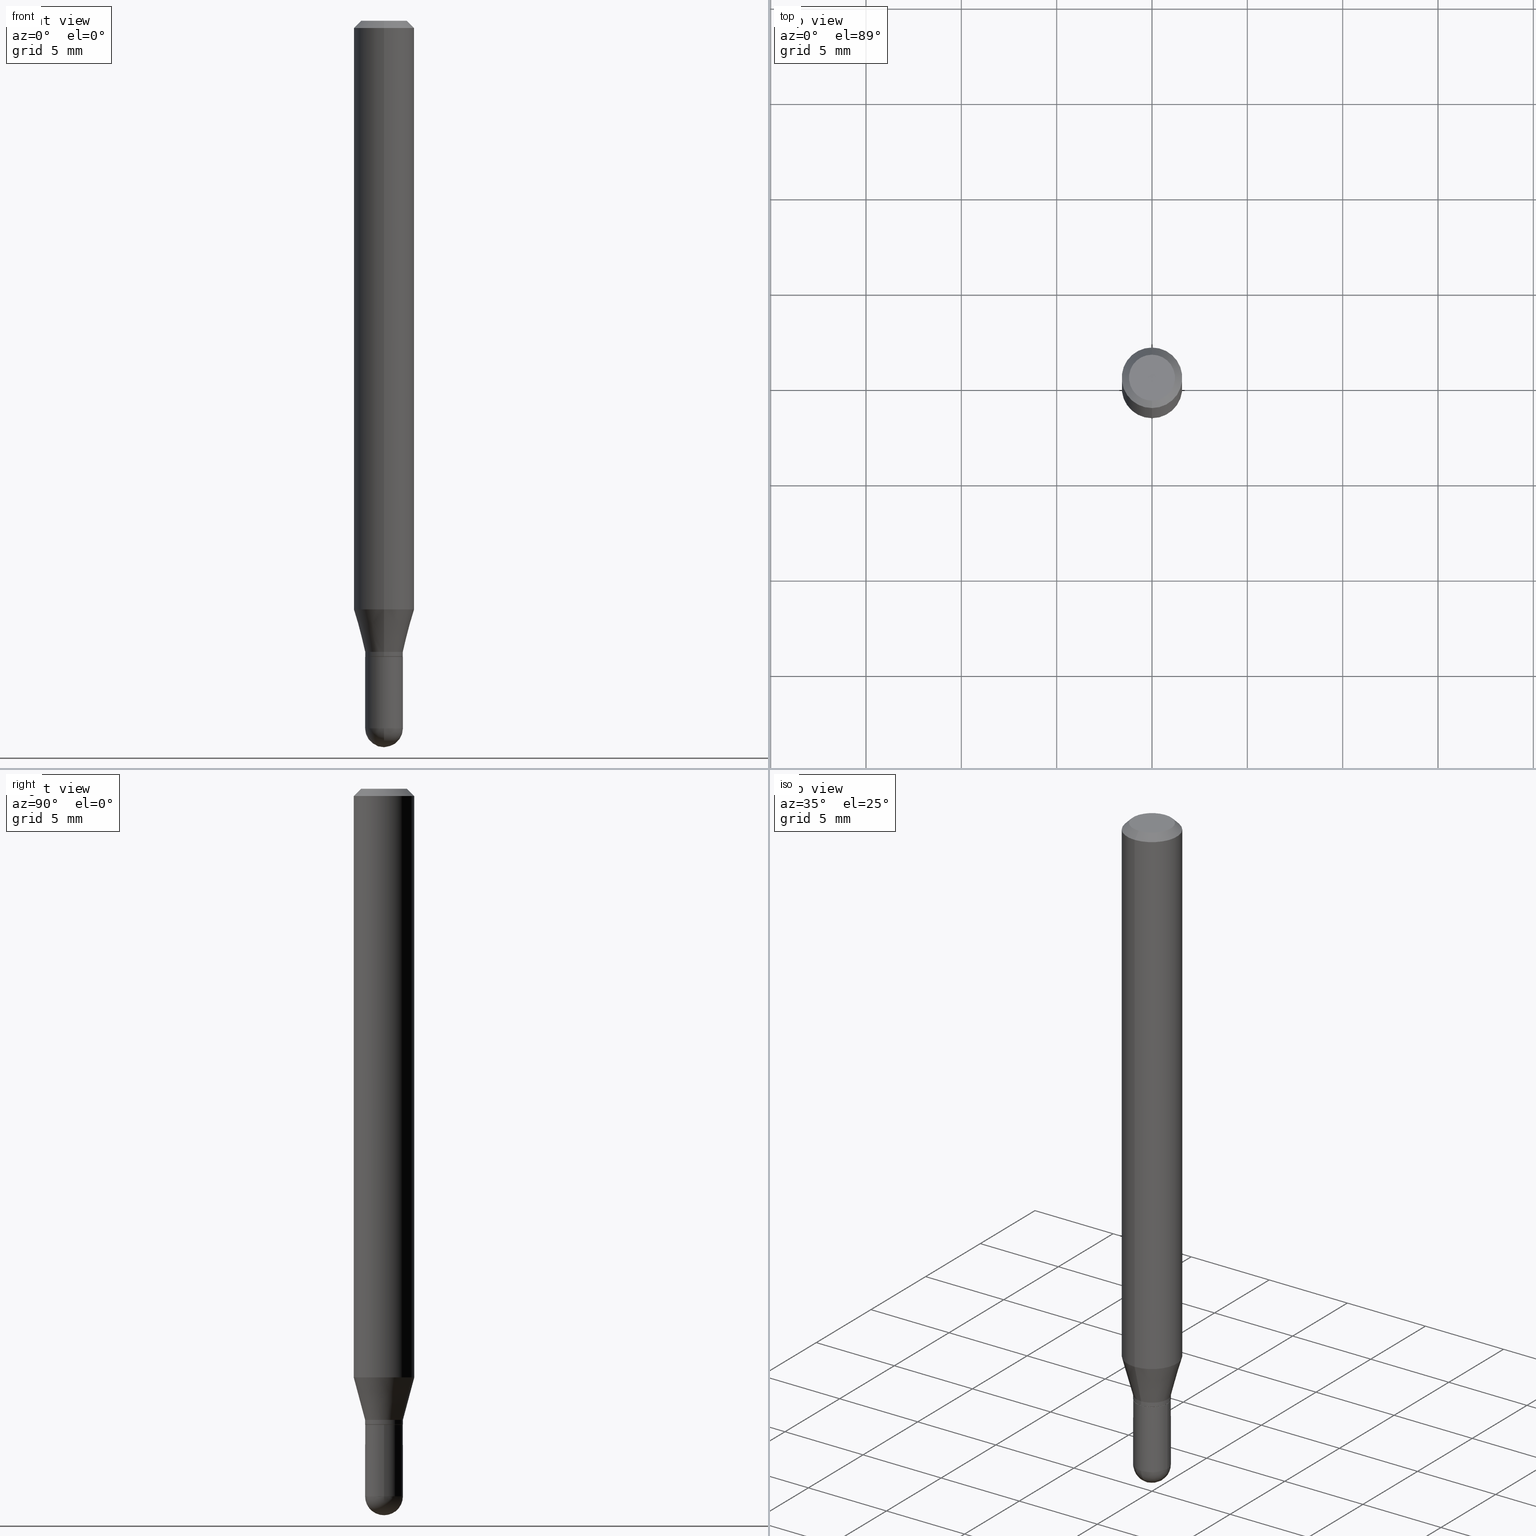
[diagram: canonical four-view strip — front | top / right | iso, engineering-drawing reading convention]
A machine part, canonical four-view strip (front | top / right | iso — engineering-drawing reading convention). The complete STEP part file that produces these views, byte-faithful:
ISO-10303-21;
HEADER;
FILE_DESCRIPTION (( 'STEP AP203' ),
    '1' );
FILE_NAME ('39010.STEP',
    '2024-03-08T12:43:14',
    ( '' ),
    ( '' ),
    'SwSTEP 2.0',
    'SolidWorks 2023',
    '' );
FILE_SCHEMA (( 'CONFIG_CONTROL_DESIGN' ));
ENDSEC;

DATA;
#1 = APPROVAL_ROLE ( '' ) ;
#2 = ADVANCED_FACE ( 'NONE', ( #295 ), #354, .T. ) ;
#3 = DIRECTION ( 'NONE',  ( -6.982962677686265133E-15, -1.000000000000000000, 0.000000000000000000 ) ) ;
#4 = APPROVAL_DATE_TIME ( #204, #507 ) ;
#5 = CC_DESIGN_PERSON_AND_ORGANIZATION_ASSIGNMENT ( #284, #166, ( #400 ) ) ;
#6 = LINE ( 'NONE', #285, #312 ) ;
#7 = VERTEX_POINT ( 'NONE', #497 ) ;
#8 = DATE_AND_TIME ( #435, #386 ) ;
#9 = DIRECTION ( 'NONE',  ( -4.937700262164674260E-15, -0.7071067811865632269, 0.7071067811865319186 ) ) ;
#10 = ORIENTED_EDGE ( 'NONE', *, *, #304, .T. ) ;
#11 = VECTOR ( 'NONE', #479, 39.37007874015748143 ) ;
#12 = APPROVAL_PERSON_ORGANIZATION ( #318, #478, #80 ) ;
#13 = FACE_OUTER_BOUND ( 'NONE', #335, .T. ) ;
#14 = EDGE_CURVE ( 'NONE', #414, #182, #26, .T. ) ;
#15 = ORIENTED_EDGE ( 'NONE', *, *, #86, .T. ) ;
#16 = DIRECTION ( 'NONE',  ( -2.445435285253421308E-29, 3.491529342725254773E-15, 1.000000000000000000 ) ) ;
#17 = PERSON ( 'UNSPECIFIED', 'UNSPECIFIED', 'UNSPECIFIED', ('UNSPECIFIED'), ('UNSPECIFIED'), ('UNSPECIFIED') ) ;
#18 = LINE ( 'NONE', #173, #280 ) ;
#19 = VERTEX_POINT ( 'NONE', #455 ) ;
#20 = VECTOR ( 'NONE', #24, 39.37007874015748143 ) ;
#21 = CIRCLE ( 'NONE', #307, 0.03904999999999992505 ) ;
#22 = ORIENTED_EDGE ( 'NONE', *, *, #255, .F. ) ;
#23 = VERTEX_POINT ( 'NONE', #144 ) ;
#24 = DIRECTION ( 'NONE',  ( -1.807323732225327773E-15, -0.2588190451025178529, 0.9659258262890690894 ) ) ;
#25 = EDGE_CURVE ( 'NONE', #7, #222, #458, .T. ) ;
#26 = CIRCLE ( 'NONE', #77, 0.06250000000000000000 ) ;
#27 = CARTESIAN_POINT ( 'NONE',  ( 4.440892098500920012E-16, 0.06249999999999572564, -1.215483408562509915 ) ) ;
#28 = AXIS2_PLACEMENT_3D ( 'NONE', #468, #114, #477 ) ;
#29 = PRODUCT_DEFINITION_FORMATION_WITH_SPECIFIED_SOURCE ( 'ANY', '', #299, .NOT_KNOWN. ) ;
#30 = ORIENTED_EDGE ( 'NONE', *, *, #43, .F. ) ;
#31 = LINE ( 'NONE', #104, #456 ) ;
#32 = VERTEX_POINT ( 'NONE', #72 ) ;
#33 = DIRECTION ( 'NONE',  ( -2.445435285253421308E-29, 3.491529342725254773E-15, 1.000000000000000000 ) ) ;
#34 = DIRECTION ( 'NONE',  ( -2.445435285253421308E-29, 3.491529342725255167E-15, 1.000000000000000000 ) ) ;
#35 = ADVANCED_FACE ( 'NONE', ( #457 ), #302, .T. ) ;
#36 = AXIS2_PLACEMENT_3D ( 'NONE', #492, #503, #469 ) ;
#37 = CC_DESIGN_SECURITY_CLASSIFICATION ( #398, ( #29 ) ) ;
#38 = FACE_OUTER_BOUND ( 'NONE', #90, .T. ) ;
#39 = CARTESIAN_POINT ( 'NONE',  ( 0.000000000000000000, 0.000000000000000000, 0.000000000000000000 ) ) ;
#40 = DIRECTION ( 'NONE',  ( -1.000000000000000000, 6.982962677686265922E-15, -4.876176775795935793E-29 ) ) ;
#41 = MECHANICAL_CONTEXT ( 'NONE', #221, 'mechanical' ) ;
#42 = DIRECTION ( 'NONE',  ( -2.445468806185136597E-29, 3.491481338843145583E-15, 1.000000000000000000 ) ) ;
#43 = EDGE_CURVE ( 'NONE', #446, #300, #367, .T. ) ;
#44 = AXIS2_PLACEMENT_3D ( 'NONE', #228, #112, #415 ) ;
#45 = CARTESIAN_POINT ( 'NONE',  ( 3.209633811895115467E-29, -4.582632262326897949E-15, -1.312500000000000222 ) ) ;
#46 = CIRCLE ( 'NONE', #210, 0.03905000000000000832 ) ;
#47 = EDGE_CURVE ( 'NONE', #222, #485, #377, .T. ) ;
#48 = CARTESIAN_POINT ( 'NONE',  ( 3.668152927880133994E-31, -5.237294014087885586E-17, -0.01500000000000000812 ) ) ;
#49 = ORIENTED_EDGE ( 'NONE', *, *, #97, .T. ) ;
#50 = EDGE_CURVE ( 'NONE', #182, #414, #70, .T. ) ;
#51 = CARTESIAN_POINT ( 'NONE',  ( 3.668152927880133994E-31, -5.237294014087885586E-17, -0.01500000000000000812 ) ) ;
#52 = EDGE_LOOP ( 'NONE', ( #418, #10, #258, #259 ) ) ;
#53 = PERSON_AND_ORGANIZATION_ROLE ( 'classification_officer' ) ;
#54 = CARTESIAN_POINT ( 'NONE',  ( 0.000000000000000000, 0.000000000000000000, 0.000000000000000000 ) ) ;
#55 = ORIENTED_EDGE ( 'NONE', *, *, #122, .T. ) ;
#56 = VECTOR ( 'NONE', #370, 39.37007874015748854 ) ;
#57 = CARTESIAN_POINT ( 'NONE',  ( 0.000000000000000000, 0.000000000000000000, 0.000000000000000000 ) ) ;
#58 = ORIENTED_EDGE ( 'NONE', *, *, #426, .T. ) ;
#59 = CARTESIAN_POINT ( 'NONE',  ( 2.774669383143503417E-16, 0.03904999999999537313, -1.302999999999999936 ) ) ;
#60 = ORIENTED_EDGE ( 'NONE', *, *, #232, .T. ) ;
#61 = EDGE_CURVE ( 'NONE', #320, #23, #109, .T. ) ;
#62 = ORIENTED_EDGE ( 'NONE', *, *, #73, .F. ) ;
#63 = VECTOR ( 'NONE', #9, 39.37007874015748143 ) ;
#64 = LOCAL_TIME ( 7, 43, 14.00000000000000000, #116 ) ;
#65 = ORIENTED_EDGE ( 'NONE', *, *, #47, .T. ) ;
#66 = MANIFOLD_SOLID_BREP ( 'Body-Move/Copy2[1]', #242 ) ;
#67 = ORIENTED_EDGE ( 'NONE', *, *, #61, .T. ) ;
#68 = CARTESIAN_POINT ( 'NONE',  ( 3.666533497098082712E-29, -5.239613131140053285E-15, -1.500000000000000222 ) ) ;
#69 = DIRECTION ( 'NONE',  ( -6.982962677686265922E-15, -1.000000000000000000, 3.483106191921935554E-15 ) ) ;
#70 = CIRCLE ( 'NONE', #331, 0.06250000000000000000 ) ;
#71 = CIRCLE ( 'NONE', #234, 0.03905000000000000138 ) ;
#72 = CARTESIAN_POINT ( 'NONE',  ( 3.840629472727447874E-16, 0.04749999999999999362, -1.747056831868805136E-16 ) ) ;
#73 = EDGE_CURVE ( 'NONE', #300, #320, #118, .T. ) ;
#74 = DIRECTION ( 'NONE',  ( -6.982962677686265133E-15, -1.000000000000000000, 3.491529342725254773E-15 ) ) ;
#75 = CC_DESIGN_DATE_AND_TIME_ASSIGNMENT ( #441, #363, ( #398 ) ) ;
#76 = FACE_OUTER_BOUND ( 'NONE', #52, .T. ) ;
#77 = AXIS2_PLACEMENT_3D ( 'NONE', #148, #306, #69 ) ;
#78 = AXIS2_PLACEMENT_3D ( 'NONE', #361, #87, #248 ) ;
#79 = FACE_OUTER_BOUND ( 'NONE', #339, .T. ) ;
#80 = APPROVAL_ROLE ( '' ) ;
#81 = CARTESIAN_POINT ( 'NONE',  ( 0.000000000000000000, 0.000000000000000000, 0.000000000000000000 ) ) ;
#82 = DIRECTION ( 'NONE',  ( -2.445435285253421308E-29, 3.491529342725255167E-15, 1.000000000000000000 ) ) ;
#83 = ADVANCED_FACE ( 'NONE', ( #505 ), #237, .T. ) ;
#84 = AXIS2_PLACEMENT_3D ( 'NONE', #155, #309, #270 ) ;
#85 = LINE ( 'NONE', #329, #63 ) ;
#86 = EDGE_CURVE ( 'NONE', #402, #252, #408, .T. ) ;
#87 = DIRECTION ( 'NONE',  ( -2.445435285253421308E-29, 3.491529342725255167E-15, 1.000000000000000000 ) ) ;
#88 = EDGE_LOOP ( 'NONE', ( #378, #171 ) ) ;
#89 = CYLINDRICAL_SURFACE ( 'NONE', #202, 0.03905000000000000832 ) ;
#90 = EDGE_LOOP ( 'NONE', ( #289, #387, #382, #380 ) ) ;
#91 = CARTESIAN_POINT ( 'NONE',  ( 2.774669383143496514E-16, 0.03904999999999519966, -1.312500000000000222 ) ) ;
#92 = AXIS2_PLACEMENT_3D ( 'NONE', #502, #146, #461 ) ;
#93 = EDGE_LOOP ( 'NONE', ( #215, #452, #106, #206 ) ) ;
#94 = AXIS2_PLACEMENT_3D ( 'NONE', #509, #193, #346 ) ;
#95 =( GEOMETRIC_REPRESENTATION_CONTEXT ( 3 ) GLOBAL_UNCERTAINTY_ASSIGNED_CONTEXT ( ( #145 ) ) GLOBAL_UNIT_ASSIGNED_CONTEXT ( ( #343, #430, #390 ) ) REPRESENTATION_CONTEXT ( 'NONE', 'WORKASPACE' ) );
#96 = DIRECTION ( 'NONE',  ( -6.982962677686265133E-15, -1.000000000000000000, 0.000000000000000000 ) ) ;
#97 = EDGE_CURVE ( 'NONE', #402, #7, #393, .T. ) ;
#98 = ORIENTED_EDGE ( 'NONE', *, *, #25, .F. ) ;
#99 = VERTEX_POINT ( 'NONE', #431 ) ;
#100 = DIMENSIONAL_EXPONENTS ( 1.000000000000000000, 0.000000000000000000, 0.000000000000000000, 0.000000000000000000, 0.000000000000000000, 0.000000000000000000, 0.000000000000000000 ) ;
#101 = ORIENTED_EDGE ( 'NONE', *, *, #381, .T. ) ;
#102 = VECTOR ( 'NONE', #244, 39.37007874015748143 ) ;
#103 = ORIENTED_EDGE ( 'NONE', *, *, #255, .T. ) ;
#104 = CARTESIAN_POINT ( 'NONE',  ( 2.739142246355506265E-16, 0.03854999999999541432, -1.313000000000000167 ) ) ;
#105 = APPLICATION_CONTEXT ( 'configuration controlled 3d designs of mechanical parts and assemblies' ) ;
#106 = ORIENTED_EDGE ( 'NONE', *, *, #86, .F. ) ;
#107 = PLANE ( 'NONE',  #490 ) ;
#108 = CARTESIAN_POINT ( 'NONE',  ( 3.569368228036930558E-29, -5.105661907733563837E-15, -1.460950000000000193 ) ) ;
#109 = CIRCLE ( 'NONE', #152, 0.03905000000000000832 ) ;
#110 = DIRECTION ( 'NONE',  ( 1.000000000000000000, -6.982962677686266711E-15, 0.000000000000000000 ) ) ;
#111 = CIRCLE ( 'NONE', #194, 0.03855000000000000093 ) ;
#112 = DIRECTION ( 'NONE',  ( -2.445435285253421308E-29, 3.491529342725255167E-15, 1.000000000000000000 ) ) ;
#113 = DIRECTION ( 'NONE',  ( 5.024295867788190974E-15, 0.7071067811865681119, 0.7071067811865270336 ) ) ;
#114 = DIRECTION ( 'NONE',  ( -1.000000000000000000, 6.982962677686265922E-15, -4.883557194083112901E-29 ) ) ;
#115 = DIRECTION ( 'NONE',  ( -6.982962677686265133E-15, -1.000000000000000000, 0.000000000000000000 ) ) ;
#116 = COORDINATED_UNIVERSAL_TIME_OFFSET ( 5, 0, .BEHIND. ) ;
#117 = ADVANCED_FACE ( 'NONE', ( #79 ), #201, .F. ) ;
#118 = CIRCLE ( 'NONE', #407, 0.03905000000000000832 ) ;
#119 = AXIS2_PLACEMENT_3D ( 'NONE', #45, #162, #3 ) ;
#120 = DIRECTION ( 'NONE',  ( -2.445468806185136597E-29, 3.491481338843145583E-15, 1.000000000000000000 ) ) ;
#121 = CALENDAR_DATE ( 2024, 8, 3 ) ;
#122 = EDGE_CURVE ( 'NONE', #224, #143, #338, .T. ) ;
#123 = CARTESIAN_POINT ( 'NONE',  ( 3.316907271900976096E-16, 0.04749999999999999362, -1.702766634831650498E-16 ) ) ;
#124 = DATE_AND_TIME ( #274, #130 ) ;
#125 = LINE ( 'NONE', #438, #128 ) ;
#126 = ADVANCED_FACE ( 'NONE', ( #230 ), #437, .F. ) ;
#127 = APPROVAL_DATE_TIME ( #159, #478 ) ;
#128 = VECTOR ( 'NONE', #467, 39.37007874015748143 ) ;
#129 = DIRECTION ( 'NONE',  ( 2.445435285253421308E-29, -3.491529342725255167E-15, -1.000000000000000000 ) ) ;
#130 = LOCAL_TIME ( 7, 43, 14.00000000000000000, #161 ) ;
#131 = ORIENTED_EDGE ( 'NONE', *, *, #50, .F. ) ;
#132 = PERSON_AND_ORGANIZATION ( #17, #440 ) ;
#133 = LINE ( 'NONE', #59, #56 ) ;
#134 = ORIENTED_EDGE ( 'NONE', *, *, #50, .T. ) ;
#135 = CARTESIAN_POINT ( 'NONE',  ( 4.364351673553919652E-16, 0.06249999999999995143, -0.01500000000000022669 ) ) ;
#136 = ORIENTED_EDGE ( 'NONE', *, *, #410, .T. ) ;
#137 = EDGE_CURVE ( 'NONE', #446, #23, #250, .T. ) ;
#138 = DIRECTION ( 'NONE',  ( -6.982962677686265922E-15, -1.000000000000000000, 4.370956789862821150E-15 ) ) ;
#139 = ORIENTED_EDGE ( 'NONE', *, *, #261, .F. ) ;
#140 = CIRCLE ( 'NONE', #177, 0.03904999999999992505 ) ;
#141 = DIRECTION ( 'NONE',  ( -2.445435285253421028E-29, 3.491529342725254773E-15, 1.000000000000000000 ) ) ;
#142 = ORIENTED_EDGE ( 'NONE', *, *, #14, .T. ) ;
#143 = VERTEX_POINT ( 'NONE', #352 ) ;
#144 = CARTESIAN_POINT ( 'NONE',  ( -2.774669383142833871E-16, -0.03905000000000510146, -1.460950000000000193 ) ) ;
#145 = UNCERTAINTY_MEASURE_WITH_UNIT (LENGTH_MEASURE( 1.000000000000000082E-05 ), #343, 'distance_accuracy_value', 'NONE');
#146 = DIRECTION ( 'NONE',  ( -2.445435285253421308E-29, 3.491529342725255167E-15, 1.000000000000000000 ) ) ;
#147 = CARTESIAN_POINT ( 'NONE',  ( 3.209633811895115467E-29, -4.582632262326897949E-15, -1.312500000000000222 ) ) ;
#148 = CARTESIAN_POINT ( 'NONE',  ( 3.668152927880133994E-31, -5.237294014087885586E-17, -0.01500000000000000812 ) ) ;
#149 = LINE ( 'NONE', #462, #226 ) ;
#150 = ADVANCED_FACE ( 'NONE', ( #353 ), #356, .T. ) ;
#151 = ORIENTED_EDGE ( 'NONE', *, *, #188, .T. ) ;
#152 = AXIS2_PLACEMENT_3D ( 'NONE', #359, #42, #389 ) ;
#153 = CONICAL_SURFACE ( 'NONE', #368, 0.03904999999999992505, 0.2617993877991499074 ) ;
#154 = SPHERICAL_SURFACE ( 'NONE', #323, 0.03904999999999998750 ) ;
#155 = CARTESIAN_POINT ( 'NONE',  ( 3.572707652396175485E-29, -5.100879661982893620E-15, -1.460950000000000193 ) ) ;
#156 = APPROVAL_STATUS ( 'not_yet_approved' ) ;
#157 = DIRECTION ( 'NONE',  ( -2.445435285253421308E-29, 3.491529342725255167E-15, 1.000000000000000000 ) ) ;
#158 = EDGE_CURVE ( 'NONE', #32, #336, #474, .T. ) ;
#159 = DATE_AND_TIME ( #480, #220 ) ;
#160 = DIRECTION ( 'NONE',  ( -6.982962677686265133E-15, -1.000000000000000000, 0.000000000000000000 ) ) ;
#161 = COORDINATED_UNIVERSAL_TIME_OFFSET ( 5, 0, .BEHIND. ) ;
#162 = DIRECTION ( 'NONE',  ( -2.445435285253421308E-29, 3.491529342725255167E-15, 1.000000000000000000 ) ) ;
#163 = APPLICATION_PROTOCOL_DEFINITION ( 'international standard', 'config_control_design', 1994, #105 ) ;
#164 = CARTESIAN_POINT ( 'NONE',  ( -4.287811248607203282E-16, -0.06250000000000005551, -0.01499999999999979128 ) ) ;
#165 = EDGE_LOOP ( 'NONE', ( #254, #223, #139, #256 ) ) ;
#166 = PERSON_AND_ORGANIZATION_ROLE ( 'creator' ) ;
#167 = AXIS2_PLACEMENT_3D ( 'NONE', #251, #373, #375 ) ;
#168 = DIRECTION ( 'NONE',  ( -2.445435285253421308E-29, 3.491529342725255167E-15, 1.000000000000000000 ) ) ;
#169 = EDGE_LOOP ( 'NONE', ( #366, #101, #134, #217 ) ) ;
#170 = DIRECTION ( 'NONE',  ( -2.445468806185136597E-29, 3.491481338843145583E-15, 1.000000000000000000 ) ) ;
#171 = ORIENTED_EDGE ( 'NONE', *, *, #304, .F. ) ;
#172 = ADVANCED_FACE ( 'NONE', ( #76 ), #464, .T. ) ;
#173 = CARTESIAN_POINT ( 'NONE',  ( -4.364351673553916201E-16, -0.06250000000000000000, 2.182205839203284233E-16 ) ) ;
#174 = ORIENTED_EDGE ( 'NONE', *, *, #413, .T. ) ;
#175 = DIRECTION ( 'NONE',  ( -2.445435285253421308E-29, 3.491529342725255167E-15, 1.000000000000000000 ) ) ;
#176 = ORIENTED_EDGE ( 'NONE', *, *, #374, .F. ) ;
#177 = AXIS2_PLACEMENT_3D ( 'NONE', #211, #168, #412 ) ;
#178 = ADVANCED_FACE ( 'NONE', ( #38 ), #153, .T. ) ;
#179 = ORIENTED_EDGE ( 'NONE', *, *, #426, .F. ) ;
#180 = ADVANCED_FACE ( 'NONE', ( #196 ), #350, .T. ) ;
#181 = PRODUCT_DEFINITION_SHAPE ( 'NONE', 'NONE',  #400 ) ;
#182 = VERTEX_POINT ( 'NONE', #315 ) ;
#183 = EDGE_LOOP ( 'NONE', ( #330, #454 ) ) ;
#184 = AXIS2_PLACEMENT_3D ( 'NONE', #436, #267, #275 ) ;
#185 = APPROVAL_PERSON_ORGANIZATION ( #510, #191, #1 ) ;
#186 = FACE_OUTER_BOUND ( 'NONE', #165, .T. ) ;
#187 = VERTEX_POINT ( 'NONE', #506 ) ;
#188 = EDGE_CURVE ( 'NONE', #23, #449, #271, .T. ) ;
#189 = CARTESIAN_POINT ( 'NONE',  ( 0.03905000000000000832, -5.115282022505621222E-15, -1.460950000000000193 ) ) ;
#190 = ORIENTED_EDGE ( 'NONE', *, *, #73, .T. ) ;
#191 = APPROVAL ( #239, 'UNSPECIFIED' ) ;
#192 = LENGTH_MEASURE_WITH_UNIT ( LENGTH_MEASURE( 0.02539999999999999897 ), #227 );
#193 = DIRECTION ( 'NONE',  ( -2.445435285253421308E-29, 3.491529342725255167E-15, 1.000000000000000000 ) ) ;
#194 = AXIS2_PLACEMENT_3D ( 'NONE', #324, #281, #96 ) ;
#195 = ADVANCED_FACE ( 'NONE', ( #433 ), #384, .T. ) ;
#196 = FACE_OUTER_BOUND ( 'NONE', #489, .T. ) ;
#197 = DIRECTION ( 'NONE',  ( -2.445468806185136597E-29, 3.491481338843145583E-15, 1.000000000000000000 ) ) ;
#198 = DIRECTION ( 'NONE',  ( 1.000000000000000000, -6.982962677686266711E-15, 0.000000000000000000 ) ) ;
#199 = CC_DESIGN_PERSON_AND_ORGANIZATION_ASSIGNMENT ( #483, #53, ( #398 ) ) ;
#200 = APPROVAL_STATUS ( 'not_yet_approved' ) ;
#201 = PLANE ( 'NONE',  #296 ) ;
#202 = AXIS2_PLACEMENT_3D ( 'NONE', #57, #170, #277 ) ;
#203 = DIRECTION ( 'NONE',  ( -2.445435285253421308E-29, 3.491529342725255167E-15, 1.000000000000000000 ) ) ;
#204 = DATE_AND_TIME ( #207, #64 ) ;
#205 = DIRECTION ( 'NONE',  ( 6.982962677686265922E-15, 1.000000000000000000, -3.483106191921935554E-15 ) ) ;
#206 = ORIENTED_EDGE ( 'NONE', *, *, #278, .F. ) ;
#207 = CALENDAR_DATE ( 2024, 8, 3 ) ;
#208 = CARTESIAN_POINT ( 'NONE',  ( 3.572707652396175485E-29, -5.100879661982893620E-15, -1.460950000000000193 ) ) ;
#209 = ORIENTED_EDGE ( 'NONE', *, *, #137, .T. ) ;
#210 = AXIS2_PLACEMENT_3D ( 'NONE', #208, #442, #291 ) ;
#211 = CARTESIAN_POINT ( 'NONE',  ( 3.186402176685208399E-29, -4.549462733571007534E-15, -1.302999999999999936 ) ) ;
#212 = EDGE_CURVE ( 'NONE', #99, #7, #434, .T. ) ;
#213 = ORIENTED_EDGE ( 'NONE', *, *, #379, .T. ) ;
#214 = FACE_OUTER_BOUND ( 'NONE', #494, .T. ) ;
#215 = ORIENTED_EDGE ( 'NONE', *, *, #498, .T. ) ;
#216 = CARTESIAN_POINT ( 'NONE',  ( -2.726846925636169666E-16, -0.03905000000000464350, -1.312500000000000222 ) ) ;
#217 = ORIENTED_EDGE ( 'NONE', *, *, #379, .F. ) ;
#218 = AXIS2_PLACEMENT_3D ( 'NONE', #51, #481, #405 ) ;
#219 = CARTESIAN_POINT ( 'NONE',  ( 3.668152927880133994E-31, -5.237294014087885586E-17, -0.01500000000000000812 ) ) ;
#220 = LOCAL_TIME ( 7, 43, 14.00000000000000000, #310 ) ;
#221 = APPLICATION_CONTEXT ( 'configuration controlled 3d designs of mechanical parts and assemblies' ) ;
#222 = VERTEX_POINT ( 'NONE', #448 ) ;
#223 = ORIENTED_EDGE ( 'NONE', *, *, #43, .T. ) ;
#224 = VERTEX_POINT ( 'NONE', #445 ) ;
#225 = ADVANCED_FACE ( 'NONE', ( #214 ), #245, .T. ) ;
#226 = VECTOR ( 'NONE', #33, 39.37007874015748143 ) ;
#227 =( LENGTH_UNIT ( ) NAMED_UNIT ( * ) SI_UNIT ( $, .METRE. ) );
#228 = CARTESIAN_POINT ( 'NONE',  ( 2.972386015938861663E-29, -4.243895986591712384E-15, -1.215483408562509693 ) ) ;
#229 = CARTESIAN_POINT ( 'NONE',  ( 4.440892098500924943E-16, 0.06249999999999993755, -0.01500000000000022669 ) ) ;
#230 = FACE_OUTER_BOUND ( 'NONE', #183, .T. ) ;
#231 = LINE ( 'NONE', #383, #358 ) ;
#232 = EDGE_CURVE ( 'NONE', #222, #182, #18, .T. ) ;
#233 = DIRECTION ( 'NONE',  ( 6.982962677686265922E-15, 1.000000000000000000, -3.491529342725254773E-15 ) ) ;
#234 = AXIS2_PLACEMENT_3D ( 'NONE', #260, #388, #110 ) ;
#235 = AXIS2_PLACEMENT_3D ( 'NONE', #39, #321, #316 ) ;
#236 = CC_DESIGN_PERSON_AND_ORGANIZATION_ASSIGNMENT ( #276, #279, ( #29 ) ) ;
#237 = CYLINDRICAL_SURFACE ( 'NONE', #424, 0.03904999999999992505 ) ;
#238 = DIRECTION ( 'NONE',  ( -2.445468806185136597E-29, 3.491481338843145583E-15, 1.000000000000000000 ) ) ;
#239 = APPROVAL_STATUS ( 'not_yet_approved' ) ;
#240 = DIRECTION ( 'NONE',  ( 2.438088387897960049E-29, -3.491481338843145188E-15, -1.000000000000000000 ) ) ;
#241 = PERSON_AND_ORGANIZATION ( #17, #440 ) ;
#242 = CLOSED_SHELL ( 'NONE', ( #283, #180, #117, #460, #419 ) ) ;
#243 = AXIS2_PLACEMENT_3D ( 'NONE', #54, #175, #334 ) ;
#244 = DIRECTION ( 'NONE',  ( 4.937700262164548042E-15, 0.7071067811865451302, -0.7071067811865499042 ) ) ;
#245 = CYLINDRICAL_SURFACE ( 'NONE', #167, 0.06250000000000000000 ) ;
#246 = ORIENTED_EDGE ( 'NONE', *, *, #47, .F. ) ;
#247 = APPROVAL_DATE_TIME ( #8, #191 ) ;
#248 = DIRECTION ( 'NONE',  ( -6.982962677686265133E-15, -1.000000000000000000, 0.000000000000000000 ) ) ;
#249 = EDGE_LOOP ( 'NONE', ( #179, #262, #60, #282 ) ) ;
#250 = CIRCLE ( 'NONE', #184, 0.03904999999999998750 ) ;
#251 = CARTESIAN_POINT ( 'NONE',  ( 0.000000000000000000, 0.000000000000000000, 0.000000000000000000 ) ) ;
#252 = VERTEX_POINT ( 'NONE', #91 ) ;
#253 = LINE ( 'NONE', #135, #102 ) ;
#254 = ORIENTED_EDGE ( 'NONE', *, *, #137, .F. ) ;
#255 = EDGE_CURVE ( 'NONE', #449, #143, #6, .T. ) ;
#256 = ORIENTED_EDGE ( 'NONE', *, *, #188, .F. ) ;
#257 = AXIS2_PLACEMENT_3D ( 'NONE', #303, #197, #501 ) ;
#258 = ORIENTED_EDGE ( 'NONE', *, *, #278, .T. ) ;
#259 = ORIENTED_EDGE ( 'NONE', *, *, #413, .F. ) ;
#260 = CARTESIAN_POINT ( 'NONE',  ( 3.210900542521084585E-29, -4.584314997901050598E-15, -1.313000000000000167 ) ) ;
#261 = EDGE_CURVE ( 'NONE', #449, #300, #46, .T. ) ;
#262 = ORIENTED_EDGE ( 'NONE', *, *, #332, .T. ) ;
#263 = DIRECTION ( 'NONE',  ( -2.445435285253421308E-29, 3.491529342725255167E-15, 1.000000000000000000 ) ) ;
#264 = EDGE_LOOP ( 'NONE', ( #15, #372, #176, #376 ) ) ;
#265 = AXIS2_PLACEMENT_3D ( 'NONE', #473, #82, #115 ) ;
#266 = CARTESIAN_POINT ( 'NONE',  ( 3.210856529537742007E-29, -4.584378026998260520E-15, -1.313000000000000167 ) ) ;
#267 = DIRECTION ( 'NONE',  ( -1.000000000000000000, 7.105427357601001070E-15, -4.926315508542082329E-29 ) ) ;
#268 = CARTESIAN_POINT ( 'NONE',  ( 2.726846925636807657E-16, 0.03904999999999541477, -1.313000000000000167 ) ) ;
#269 = APPLICATION_PROTOCOL_DEFINITION ( 'international standard', 'config_control_design', 1994, #221 ) ;
#270 = DIRECTION ( 'NONE',  ( 1.000000000000000000, -6.982962677686265133E-15, 0.000000000000000000 ) ) ;
#271 = CIRCLE ( 'NONE', #84, 0.03905000000000000832 ) ;
#272 = LOCAL_TIME ( 7, 43, 14.00000000000000000, #351 ) ;
#273 = DIRECTION ( 'NONE',  ( 2.445435285253421028E-29, -3.491529342725254773E-15, -1.000000000000000000 ) ) ;
#274 = CALENDAR_DATE ( 2024, 8, 3 ) ;
#275 = DIRECTION ( 'NONE',  ( -7.105427357601000281E-15, -1.000000000000000000, 0.000000000000000000 ) ) ;
#276 = PERSON_AND_ORGANIZATION ( #17, #440 ) ;
#277 = DIRECTION ( 'NONE',  ( 1.000000000000000000, -6.982962677686266711E-15, 4.876176775795935232E-29 ) ) ;
#278 = EDGE_CURVE ( 'NONE', #19, #402, #85, .T. ) ;
#279 = PERSON_AND_ORGANIZATION_ROLE ( 'design_supplier' ) ;
#280 = VECTOR ( 'NONE', #16, 39.37007874015748143 ) ;
#281 = DIRECTION ( 'NONE',  ( -2.445435285253421308E-29, 3.491529342725255167E-15, 1.000000000000000000 ) ) ;
#282 = ORIENTED_EDGE ( 'NONE', *, *, #14, .F. ) ;
#283 = ADVANCED_FACE ( 'NONE', ( #13 ), #89, .T. ) ;
#284 = PERSON_AND_ORGANIZATION ( #17, #440 ) ;
#285 = CARTESIAN_POINT ( 'NONE',  ( 0.03905000000000000832, -2.726846925636487675E-16, 1.904147030948313202E-30 ) ) ;
#286 = EDGE_LOOP ( 'NONE', ( #500, #174, #49, #420 ) ) ;
#287 = CC_DESIGN_PERSON_AND_ORGANIZATION_ASSIGNMENT ( #313, #508, ( #29 ) ) ;
#288 = LINE ( 'NONE', #164, #450 ) ;
#289 = ORIENTED_EDGE ( 'NONE', *, *, #397, .F. ) ;
#290 = AXIS2_PLACEMENT_3D ( 'NONE', #317, #238, #198 ) ;
#291 = DIRECTION ( 'NONE',  ( 1.000000000000000000, -6.982962677686265133E-15, 0.000000000000000000 ) ) ;
#292 = EDGE_LOOP ( 'NONE', ( #326, #67, #151, #103, #411 ) ) ;
#293 = FACE_OUTER_BOUND ( 'NONE', #292, .T. ) ;
#294 = ORIENTED_EDGE ( 'NONE', *, *, #465, .F. ) ;
#295 = FACE_OUTER_BOUND ( 'NONE', #495, .T. ) ;
#296 = AXIS2_PLACEMENT_3D ( 'NONE', #268, #240, #40 ) ;
#297 = CARTESIAN_POINT ( 'NONE',  ( -2.726846925636162763E-16, -0.03905000000000447002, -1.302999999999999936 ) ) ;
#298 = APPROVAL_PERSON_ORGANIZATION ( #241, #507, #472 ) ;
#299 = PRODUCT ( '39010', '39010', '', ( #41 ) ) ;
#300 = VERTEX_POINT ( 'NONE', #399 ) ;
#301 = DIRECTION ( 'NONE',  ( -2.445435285253421308E-29, 3.491529342725254773E-15, 1.000000000000000000 ) ) ;
#302 = CYLINDRICAL_SURFACE ( 'NONE', #92, 0.03904999999999992505 ) ;
#303 = CARTESIAN_POINT ( 'NONE',  ( 0.000000000000000000, 0.000000000000000000, 0.000000000000000000 ) ) ;
#304 = EDGE_CURVE ( 'NONE', #187, #19, #111, .T. ) ;
#305 = AXIS2_PLACEMENT_3D ( 'NONE', #108, #425, #466 ) ;
#306 = DIRECTION ( 'NONE',  ( -2.445435285253421308E-29, 3.491529342725255167E-15, 1.000000000000000000 ) ) ;
#307 = AXIS2_PLACEMENT_3D ( 'NONE', #147, #453, #499 ) ;
#308 = CARTESIAN_POINT ( 'NONE',  ( 3.186402176685208399E-29, -4.549462733571007534E-15, -1.302999999999999936 ) ) ;
#309 = DIRECTION ( 'NONE',  ( -2.445468806185136597E-29, 3.491481338843145583E-15, 1.000000000000000000 ) ) ;
#310 = COORDINATED_UNIVERSAL_TIME_OFFSET ( 5, 0, .BEHIND. ) ;
#311 = CARTESIAN_POINT ( 'NONE',  ( -2.726846925636481266E-16, -0.03904999999999992505, 1.363442208334209384E-16 ) ) ;
#312 = VECTOR ( 'NONE', #409, 39.37007874015748143 ) ;
#313 = PERSON_AND_ORGANIZATION ( #17, #440 ) ;
#314 = CIRCLE ( 'NONE', #475, 0.03855000000000000093 ) ;
#315 = CARTESIAN_POINT ( 'NONE',  ( -4.364351673553912750E-16, -0.06250000000000005551, -0.01499999999999979128 ) ) ;
#316 = DIRECTION ( 'NONE',  ( 1.000000000000000000, 0.000000000000000000, 0.000000000000000000 ) ) ;
#317 = CARTESIAN_POINT ( 'NONE',  ( 3.210900542521084585E-29, -4.584314997901050598E-15, -1.313000000000000167 ) ) ;
#318 = PERSON_AND_ORGANIZATION ( #17, #440 ) ;
#319 = DIRECTION ( 'NONE',  ( -4.851104656540964275E-15, -0.7071067811865500152, -0.7071067811865450192 ) ) ;
#320 = VERTEX_POINT ( 'NONE', #486 ) ;
#321 = DIRECTION ( 'NONE',  ( 0.000000000000000000, 0.000000000000000000, 1.000000000000000000 ) ) ;
#322 = AXIS2_PLACEMENT_3D ( 'NONE', #422, #344, #342 ) ;
#323 = AXIS2_PLACEMENT_3D ( 'NONE', #432, #423, #341 ) ;
#324 = CARTESIAN_POINT ( 'NONE',  ( 3.210856529537742007E-29, -4.584378026998260520E-15, -1.313000000000000167 ) ) ;
#325 = ADVANCED_FACE ( 'NONE', ( #488 ), #396, .T. ) ;
#326 = ORIENTED_EDGE ( 'NONE', *, *, #410, .F. ) ;
#327 = FACE_OUTER_BOUND ( 'NONE', #249, .T. ) ;
#328 = EDGE_LOOP ( 'NONE', ( #362, #487, #213, #142 ) ) ;
#329 = CARTESIAN_POINT ( 'NONE',  ( -2.691932112247734171E-16, -0.03855000000000458060, -1.313000000000000167 ) ) ;
#330 = ORIENTED_EDGE ( 'NONE', *, *, #158, .T. ) ;
#331 = AXIS2_PLACEMENT_3D ( 'NONE', #219, #203, #428 ) ;
#332 = EDGE_CURVE ( 'NONE', #485, #222, #348, .T. ) ;
#333 = AXIS2_PLACEMENT_3D ( 'NONE', #470, #34, #391 ) ;
#334 = DIRECTION ( 'NONE',  ( -6.982962677686265922E-15, -1.000000000000000000, 3.491529342725254773E-15 ) ) ;
#335 = EDGE_LOOP ( 'NONE', ( #190, #136, #294, #22, #493 ) ) ;
#336 = VERTEX_POINT ( 'NONE', #451 ) ;
#337 = ORIENTED_EDGE ( 'NONE', *, *, #232, .F. ) ;
#338 = CIRCLE ( 'NONE', #290, 0.03905000000000000138 ) ;
#339 = EDGE_LOOP ( 'NONE', ( #385, #55 ) ) ;
#340 = ADVANCED_FACE ( 'NONE', ( #327 ), #365, .T. ) ;
#341 = DIRECTION ( 'NONE',  ( 6.982962677686265922E-15, 1.000000000000000000, 0.000000000000000000 ) ) ;
#342 = DIRECTION ( 'NONE',  ( -6.982962677686265133E-15, -1.000000000000000000, 0.000000000000000000 ) ) ;
#343 =( CONVERSION_BASED_UNIT ( 'INCH', #192 ) LENGTH_UNIT ( ) NAMED_UNIT ( #100 ) );
#344 = DIRECTION ( 'NONE',  ( -2.445435285253421308E-29, 3.491529342725255167E-15, 1.000000000000000000 ) ) ;
#345 = CARTESIAN_POINT ( 'NONE',  ( 3.210856529537742007E-29, -4.584378026998260520E-15, -1.313000000000000167 ) ) ;
#346 = DIRECTION ( 'NONE',  ( -6.982962677686265133E-15, -1.000000000000000000, 0.000000000000000000 ) ) ;
#347 = DESIGN_CONTEXT ( 'detailed design', #105, 'design' ) ;
#348 = CIRCLE ( 'NONE', #416, 0.06250000000000000000 ) ;
#349 = DIRECTION ( 'NONE',  ( -6.982962677686265133E-15, -1.000000000000000000, 0.000000000000000000 ) ) ;
#350 = SPHERICAL_SURFACE ( 'NONE', #28, 0.03904999999999998750 ) ;
#351 = COORDINATED_UNIVERSAL_TIME_OFFSET ( 5, 0, .BEHIND. ) ;
#352 = CARTESIAN_POINT ( 'NONE',  ( 0.03905000000000000138, -4.856999690464699711E-15, -1.313000000000000167 ) ) ;
#353 = FACE_OUTER_BOUND ( 'NONE', #93, .T. ) ;
#354 = CONICAL_SURFACE ( 'NONE', #322, 0.03904999999999992505, 0.2617993877991499074 ) ;
#355 = CC_DESIGN_DATE_AND_TIME_ASSIGNMENT ( #124, #404, ( #400 ) ) ;
#356 = CONICAL_SURFACE ( 'NONE', #265, 0.03855000000000000093, 0.7853981633974739252 ) ;
#357 = SHAPE_DEFINITION_REPRESENTATION ( #181, #371 ) ;
#358 = VECTOR ( 'NONE', #301, 39.37007874015748143 ) ;
#359 = CARTESIAN_POINT ( 'NONE',  ( 3.572707652396175485E-29, -5.100879661982893620E-15, -1.460950000000000193 ) ) ;
#360 = COORDINATED_UNIVERSAL_TIME_OFFSET ( 5, 0, .BEHIND. ) ;
#361 = CARTESIAN_POINT ( 'NONE',  ( 3.186402176685208399E-29, -4.549462733571007534E-15, -1.302999999999999936 ) ) ;
#362 = ORIENTED_EDGE ( 'NONE', *, *, #381, .F. ) ;
#363 = DATE_TIME_ROLE ( 'classification_date' ) ;
#364 = CC_DESIGN_PERSON_AND_ORGANIZATION_ASSIGNMENT ( #132, #444, ( #299 ) ) ;
#365 = CYLINDRICAL_SURFACE ( 'NONE', #243, 0.06250000000000000000 ) ;
#366 = ORIENTED_EDGE ( 'NONE', *, *, #439, .F. ) ;
#367 = CIRCLE ( 'NONE', #305, 0.03904999999999998750 ) ;
#368 = AXIS2_PLACEMENT_3D ( 'NONE', #308, #511, #160 ) ;
#369 = CC_DESIGN_APPROVAL ( #191, ( #400 ) ) ;
#370 = DIRECTION ( 'NONE',  ( 1.839019923739597554E-15, 0.2588190451025245697, 0.9659258262890670910 ) ) ;
#371 = ADVANCED_BREP_SHAPE_REPRESENTATION ( '39010', ( #66, #403, #235 ), #95 ) ;
#372 = ORIENTED_EDGE ( 'NONE', *, *, #471, .T. ) ;
#373 = DIRECTION ( 'NONE',  ( -2.445435285253421308E-29, 3.491529342725255167E-15, 1.000000000000000000 ) ) ;
#374 = EDGE_CURVE ( 'NONE', #7, #99, #140, .T. ) ;
#375 = DIRECTION ( 'NONE',  ( -6.982962677686265922E-15, -1.000000000000000000, 3.491529342725254773E-15 ) ) ;
#376 = ORIENTED_EDGE ( 'NONE', *, *, #97, .F. ) ;
#377 = CIRCLE ( 'NONE', #44, 0.06250000000000000000 ) ;
#378 = ORIENTED_EDGE ( 'NONE', *, *, #498, .F. ) ;
#379 = EDGE_CURVE ( 'NONE', #32, #414, #253, .T. ) ;
#380 = ORIENTED_EDGE ( 'NONE', *, *, #332, .F. ) ;
#381 = EDGE_CURVE ( 'NONE', #336, #182, #288, .T. ) ;
#382 = ORIENTED_EDGE ( 'NONE', *, *, #25, .T. ) ;
#383 = CARTESIAN_POINT ( 'NONE',  ( 2.774669383143184914E-16, 0.03904999999999992505, -1.363442208334209384E-16 ) ) ;
#384 = CONICAL_SURFACE ( 'NONE', #392, 0.06250000000000000000, 0.7853981633974483900 ) ;
#385 = ORIENTED_EDGE ( 'NONE', *, *, #465, .T. ) ;
#386 = LOCAL_TIME ( 7, 43, 14.00000000000000000, #360 ) ;
#387 = ORIENTED_EDGE ( 'NONE', *, *, #212, .T. ) ;
#388 = DIRECTION ( 'NONE',  ( -2.445468806185136597E-29, 3.491481338843145583E-15, 1.000000000000000000 ) ) ;
#389 = DIRECTION ( 'NONE',  ( 1.000000000000000000, -6.982962677686265133E-15, 0.000000000000000000 ) ) ;
#390 =( NAMED_UNIT ( * ) SI_UNIT ( $, .STERADIAN. ) SOLID_ANGLE_UNIT ( ) );
#391 = DIRECTION ( 'NONE',  ( -6.982962677686266711E-15, -1.000000000000000000, 3.491529342725255562E-15 ) ) ;
#392 = AXIS2_PLACEMENT_3D ( 'NONE', #48, #129, #205 ) ;
#393 = LINE ( 'NONE', #311, #11 ) ;
#394 = DIRECTION ( 'NONE',  ( 1.000000000000000000, -6.982962677686265133E-15, 0.000000000000000000 ) ) ;
#395 = CARTESIAN_POINT ( 'NONE',  ( 3.572707652396175485E-29, -5.100879661982893620E-15, -1.460950000000000193 ) ) ;
#396 = CONICAL_SURFACE ( 'NONE', #218, 0.06250000000000000000, 0.7853981633974483900 ) ;
#397 = EDGE_CURVE ( 'NONE', #99, #485, #133, .T. ) ;
#398 = SECURITY_CLASSIFICATION ( '', '', #476 ) ;
#399 = CARTESIAN_POINT ( 'NONE',  ( 2.726846925636844142E-16, 0.03904999999999489435, -1.460950000000000193 ) ) ;
#400 = PRODUCT_DEFINITION ( 'UNKNOWN', '', #29, #347 ) ;
#401 = DIRECTION ( 'NONE',  ( -2.445435285253421308E-29, 3.491529342725255167E-15, 1.000000000000000000 ) ) ;
#402 = VERTEX_POINT ( 'NONE', #216 ) ;
#403 = MANIFOLD_SOLID_BREP ( 'Body-Move/Copy2[2]', #463 ) ;
#404 = DATE_TIME_ROLE ( 'creation_date' ) ;
#405 = DIRECTION ( 'NONE',  ( 6.982962677686265922E-15, 1.000000000000000000, -3.483106191921935554E-15 ) ) ;
#406 = ORIENTED_EDGE ( 'NONE', *, *, #374, .T. ) ;
#407 = AXIS2_PLACEMENT_3D ( 'NONE', #395, #120, #394 ) ;
#408 = CIRCLE ( 'NONE', #119, 0.03904999999999992505 ) ;
#409 = DIRECTION ( 'NONE',  ( -2.445468806185136877E-29, 3.491481338843145188E-15, 1.000000000000000000 ) ) ;
#410 = EDGE_CURVE ( 'NONE', #320, #224, #125, .T. ) ;
#411 = ORIENTED_EDGE ( 'NONE', *, *, #122, .F. ) ;
#412 = DIRECTION ( 'NONE',  ( -6.982962677686265133E-15, -1.000000000000000000, 0.000000000000000000 ) ) ;
#413 = EDGE_CURVE ( 'NONE', #252, #402, #21, .T. ) ;
#414 = VERTEX_POINT ( 'NONE', #229 ) ;
#415 = DIRECTION ( 'NONE',  ( -6.982962677686265922E-15, -1.000000000000000000, 4.370956789862821150E-15 ) ) ;
#416 = AXIS2_PLACEMENT_3D ( 'NONE', #484, #401, #138 ) ;
#417 = CC_DESIGN_APPROVAL ( #507, ( #398 ) ) ;
#418 = ORIENTED_EDGE ( 'NONE', *, *, #447, .F. ) ;
#419 = ADVANCED_FACE ( 'NONE', ( #293 ), #421, .T. ) ;
#420 = ORIENTED_EDGE ( 'NONE', *, *, #212, .F. ) ;
#421 = CYLINDRICAL_SURFACE ( 'NONE', #257, 0.03905000000000000832 ) ;
#422 = CARTESIAN_POINT ( 'NONE',  ( 3.186402176685208399E-29, -4.549462733571007534E-15, -1.302999999999999936 ) ) ;
#423 = DIRECTION ( 'NONE',  ( -1.000000000000000000, 6.982962677686265922E-15, -4.883557194083112901E-29 ) ) ;
#424 = AXIS2_PLACEMENT_3D ( 'NONE', #81, #157, #74 ) ;
#425 = DIRECTION ( 'NONE',  ( 1.000000000000000000, -6.982962677686265922E-15, 4.883557194083112340E-29 ) ) ;
#426 = EDGE_CURVE ( 'NONE', #485, #414, #149, .T. ) ;
#427 = DIRECTION ( 'NONE',  ( -6.982962677686265922E-15, -1.000000000000000000, 3.491529342725254773E-15 ) ) ;
#428 = DIRECTION ( 'NONE',  ( -6.982962677686265922E-15, -1.000000000000000000, 3.483106191921935554E-15 ) ) ;
#429 = PRODUCT_RELATED_PRODUCT_CATEGORY ( 'detail', '', ( #299 ) ) ;
#430 =( NAMED_UNIT ( * ) PLANE_ANGLE_UNIT ( ) SI_UNIT ( $, .RADIAN. ) );
#431 = CARTESIAN_POINT ( 'NONE',  ( 3.607780740822213933E-16, 0.03904999999999537313, -1.302999999999999936 ) ) ;
#432 = CARTESIAN_POINT ( 'NONE',  ( 3.569368228036930558E-29, -5.105661907733563837E-15, -1.460950000000000193 ) ) ;
#433 = FACE_OUTER_BOUND ( 'NONE', #328, .T. ) ;
#434 = CIRCLE ( 'NONE', #78, 0.03904999999999992505 ) ;
#435 = CALENDAR_DATE ( 2024, 8, 3 ) ;
#436 = CARTESIAN_POINT ( 'NONE',  ( 3.569368228036930558E-29, -5.105661907733563837E-15, -1.460950000000000193 ) ) ;
#437 = PLANE ( 'NONE',  #504 ) ;
#438 = CARTESIAN_POINT ( 'NONE',  ( -0.03905000000000000832, 2.774669383143191817E-16, -1.920844152744540988E-30 ) ) ;
#439 = EDGE_CURVE ( 'NONE', #336, #32, #512, .T. ) ;
#440 = ORGANIZATION ( 'UNSPECIFIED', 'UNSPECIFIED', '' ) ;
#441 = DATE_AND_TIME ( #121, #272 ) ;
#442 = DIRECTION ( 'NONE',  ( -2.445468806185136597E-29, 3.491481338843145583E-15, 1.000000000000000000 ) ) ;
#443 = ORIENTED_EDGE ( 'NONE', *, *, #397, .T. ) ;
#444 = PERSON_AND_ORGANIZATION_ROLE ( 'design_owner' ) ;
#445 = CARTESIAN_POINT ( 'NONE',  ( -0.03905000000000000138, -4.565130391627653569E-15, -1.313000000000000167 ) ) ;
#446 = VERTEX_POINT ( 'NONE', #68 ) ;
#447 = EDGE_CURVE ( 'NONE', #187, #252, #31, .T. ) ;
#448 = CARTESIAN_POINT ( 'NONE',  ( -4.364351673553621857E-16, -0.06250000000000427436, -1.215483408562509471 ) ) ;
#449 = VERTEX_POINT ( 'NONE', #189 ) ;
#450 = VECTOR ( 'NONE', #319, 39.37007874015748143 ) ;
#451 = CARTESIAN_POINT ( 'NONE',  ( -3.773273898774340269E-16, -0.04749999999999999362, 1.569896043720187075E-16 ) ) ;
#452 = ORIENTED_EDGE ( 'NONE', *, *, #447, .T. ) ;
#453 = DIRECTION ( 'NONE',  ( -2.445435285253421308E-29, 3.491529342725255167E-15, 1.000000000000000000 ) ) ;
#454 = ORIENTED_EDGE ( 'NONE', *, *, #439, .T. ) ;
#455 = CARTESIAN_POINT ( 'NONE',  ( -2.691932112247734171E-16, -0.03855000000000458060, -1.313000000000000167 ) ) ;
#456 = VECTOR ( 'NONE', #113, 39.37007874015748143 ) ;
#457 = FACE_OUTER_BOUND ( 'NONE', #264, .T. ) ;
#458 = LINE ( 'NONE', #297, #20 ) ;
#459 = FACE_OUTER_BOUND ( 'NONE', #88, .T. ) ;
#460 = ADVANCED_FACE ( 'NONE', ( #186 ), #154, .T. ) ;
#461 = DIRECTION ( 'NONE',  ( -6.982962677686265133E-15, -1.000000000000000000, 3.491529342725254773E-15 ) ) ;
#462 = CARTESIAN_POINT ( 'NONE',  ( 4.440892098500625669E-16, 0.06250000000000000000, -2.182205839203284233E-16 ) ) ;
#463 = CLOSED_SHELL ( 'NONE', ( #35, #150, #325, #225, #2, #178, #340, #195, #126, #491, #172, #83 ) ) ;
#464 = CONICAL_SURFACE ( 'NONE', #94, 0.03855000000000000093, 0.7853981633974739252 ) ;
#465 = EDGE_CURVE ( 'NONE', #143, #224, #71, .T. ) ;
#466 = DIRECTION ( 'NONE',  ( 6.982962677686266711E-15, 1.000000000000000000, 0.000000000000000000 ) ) ;
#467 = DIRECTION ( 'NONE',  ( -2.445468806185136877E-29, 3.491481338843145188E-15, 1.000000000000000000 ) ) ;
#468 = CARTESIAN_POINT ( 'NONE',  ( 3.569368228036930558E-29, -5.105661907733563837E-15, -1.460950000000000193 ) ) ;
#469 = DIRECTION ( 'NONE',  ( -6.982962677686266711E-15, -1.000000000000000000, 3.491529342725255562E-15 ) ) ;
#470 = CARTESIAN_POINT ( 'NONE',  ( 2.166176212509684537E-46, -3.092810451006163325E-32, -8.858039407430904597E-18 ) ) ;
#471 = EDGE_CURVE ( 'NONE', #252, #99, #231, .T. ) ;
#472 = APPROVAL_ROLE ( '' ) ;
#473 = CARTESIAN_POINT ( 'NONE',  ( 3.210856529537742007E-29, -4.584378026998260520E-15, -1.313000000000000167 ) ) ;
#474 = CIRCLE ( 'NONE', #333, 0.04749999999999999362 ) ;
#475 = AXIS2_PLACEMENT_3D ( 'NONE', #345, #263, #349 ) ;
#476 = SECURITY_CLASSIFICATION_LEVEL ( 'unclassified' ) ;
#477 = DIRECTION ( 'NONE',  ( 6.982962677686265922E-15, 1.000000000000000000, 0.000000000000000000 ) ) ;
#478 = APPROVAL ( #156, 'UNSPECIFIED' ) ;
#479 = DIRECTION ( 'NONE',  ( -2.445435285253421308E-29, 3.491529342725254773E-15, 1.000000000000000000 ) ) ;
#480 = CALENDAR_DATE ( 2024, 8, 3 ) ;
#481 = DIRECTION ( 'NONE',  ( 2.445435285253421308E-29, -3.491529342725255167E-15, -1.000000000000000000 ) ) ;
#482 = ORIENTED_EDGE ( 'NONE', *, *, #61, .F. ) ;
#483 = PERSON_AND_ORGANIZATION ( #17, #440 ) ;
#484 = CARTESIAN_POINT ( 'NONE',  ( 2.972386015938861663E-29, -4.243895986591712384E-15, -1.215483408562509693 ) ) ;
#485 = VERTEX_POINT ( 'NONE', #27 ) ;
#486 = CARTESIAN_POINT ( 'NONE',  ( -0.03905000000000000832, -4.565130391627653569E-15, -1.460950000000000193 ) ) ;
#487 = ORIENTED_EDGE ( 'NONE', *, *, #158, .F. ) ;
#488 = FACE_OUTER_BOUND ( 'NONE', #169, .T. ) ;
#489 = EDGE_LOOP ( 'NONE', ( #30, #209, #482, #62 ) ) ;
#490 = AXIS2_PLACEMENT_3D ( 'NONE', #266, #141, #427 ) ;
#491 = ADVANCED_FACE ( 'NONE', ( #459 ), #107, .F. ) ;
#492 = CARTESIAN_POINT ( 'NONE',  ( 2.166176212509684537E-46, -3.092810451006163325E-32, -8.858039407430904597E-18 ) ) ;
#493 = ORIENTED_EDGE ( 'NONE', *, *, #261, .T. ) ;
#494 = EDGE_LOOP ( 'NONE', ( #65, #58, #131, #337 ) ) ;
#495 = EDGE_LOOP ( 'NONE', ( #406, #443, #246, #98 ) ) ;
#496 = CC_DESIGN_APPROVAL ( #478, ( #29 ) ) ;
#497 = CARTESIAN_POINT ( 'NONE',  ( -2.726846925636162763E-16, -0.03905000000000447002, -1.302999999999999936 ) ) ;
#498 = EDGE_CURVE ( 'NONE', #19, #187, #314, .T. ) ;
#499 = DIRECTION ( 'NONE',  ( -6.982962677686265133E-15, -1.000000000000000000, 0.000000000000000000 ) ) ;
#500 = ORIENTED_EDGE ( 'NONE', *, *, #471, .F. ) ;
#501 = DIRECTION ( 'NONE',  ( 1.000000000000000000, -6.982962677686266711E-15, 4.876176775795935232E-29 ) ) ;
#502 = CARTESIAN_POINT ( 'NONE',  ( 0.000000000000000000, 0.000000000000000000, 0.000000000000000000 ) ) ;
#503 = DIRECTION ( 'NONE',  ( -2.445435285253421308E-29, 3.491529342725255167E-15, 1.000000000000000000 ) ) ;
#504 = AXIS2_PLACEMENT_3D ( 'NONE', #123, #273, #233 ) ;
#505 = FACE_OUTER_BOUND ( 'NONE', #286, .T. ) ;
#506 = CARTESIAN_POINT ( 'NONE',  ( 2.756905814749505827E-16, 0.03854999999999541432, -1.313000000000000167 ) ) ;
#507 = APPROVAL ( #200, 'UNSPECIFIED' ) ;
#508 = PERSON_AND_ORGANIZATION_ROLE ( 'creator' ) ;
#509 = CARTESIAN_POINT ( 'NONE',  ( 3.210856529537742007E-29, -4.584378026998260520E-15, -1.313000000000000167 ) ) ;
#510 = PERSON_AND_ORGANIZATION ( #17, #440 ) ;
#511 = DIRECTION ( 'NONE',  ( -2.445435285253421308E-29, 3.491529342725255167E-15, 1.000000000000000000 ) ) ;
#512 = CIRCLE ( 'NONE', #36, 0.04749999999999999362 ) ;
ENDSEC;
END-ISO-10303-21;
